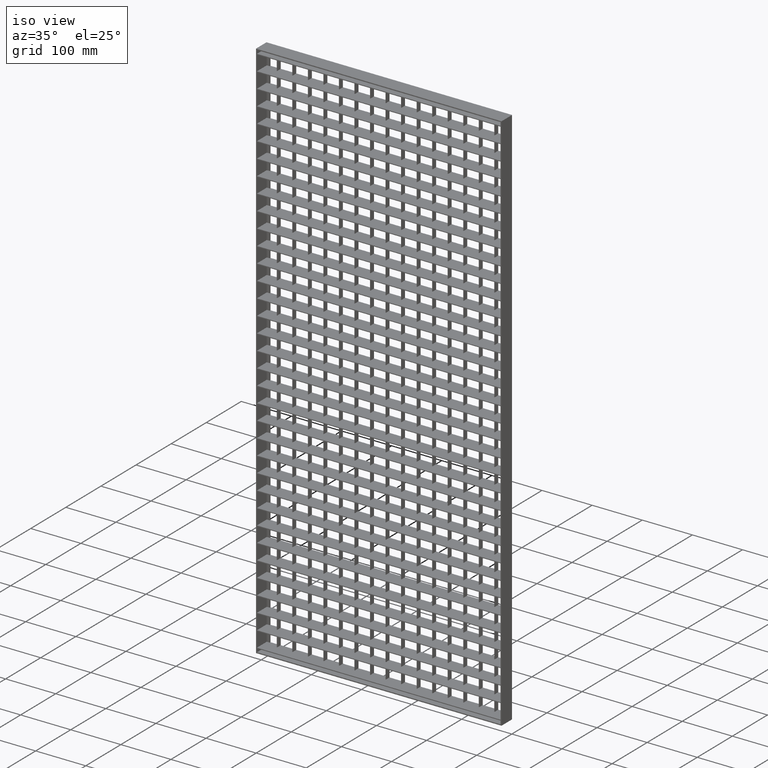
[diagram: clean part render]
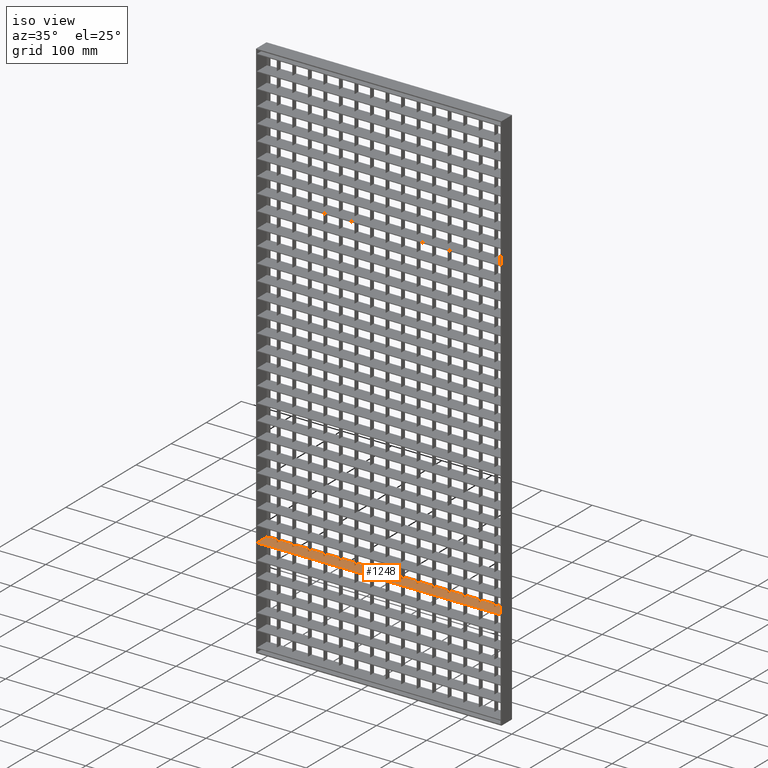
[diagram: same view with one face highlighted and labeled with its STEP entity id]
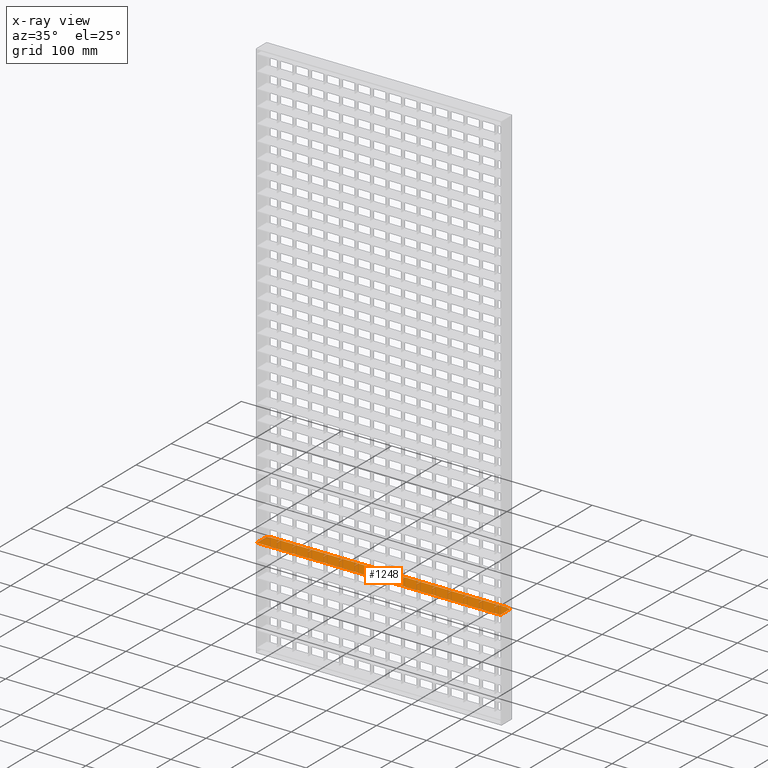
[diagram: x-ray of the same camera — body ghosted, the highlighted face saturated]
A machine part, iso view. The second image highlights one B-rep face of the part: STEP entity #1248.
The next image is the same camera in x-ray: the body ghosted, the highlighted face saturated — about 0% of this face is hidden behind the body in this view.
In plain terms, the highlighted planar face has unit normal (0, 0, -1).
Its self-contained STEP definition (entity closure, byte-faithful):
#134 = CARTESIAN_POINT ( 'NONE',  ( 151.4999999999999700, 4.999999999999996400, -890.7499999999998900 ) ) ;
#341 = CARTESIAN_POINT ( 'NONE',  ( 2.000000000000003100, 13.00000000000000400, -890.7499999999998900 ) ) ;
#351 = ORIENTED_EDGE ( 'NONE', *, *, #39759, .F. ) ;
#415 = VECTOR ( 'NONE', #20916, 1000.000000000000000 ) ;
#498 = CARTESIAN_POINT ( 'NONE',  ( 7.999999999999992900, 13.00000000000000400, -890.7499999999998900 ) ) ;
#500 = LINE ( 'NONE', #39254, #23497 ) ;
#518 = EDGE_CURVE ( 'NONE', #76921, #34134, #56385, .T. ) ;
#754 = EDGE_CURVE ( 'NONE', #41624, #6300, #35084, .T. ) ;
#811 = VECTOR ( 'NONE', #77457, 1000.000000000000000 ) ;
#1121 = CARTESIAN_POINT ( 'NONE',  ( 518.0374765917511000, 15.00000000000015500, -890.7499999999998900 ) ) ;
#1248 = ADVANCED_FACE ( 'NONE', ( #32161 ), #38291, .F. ) ;
#1271 = LINE ( 'NONE', #3978, #9024 ) ;
#1394 = VERTEX_POINT ( 'NONE', #27518 ) ;
#1456 = LINE ( 'NONE', #33383, #8215 ) ;
#1684 = VECTOR ( 'NONE', #37932, 1000.000000000000000 ) ;
#1763 = EDGE_CURVE ( 'NONE', #3922, #1394, #41634, .T. ) ;
#1937 = EDGE_CURVE ( 'NONE', #48985, #17955, #47420, .T. ) ;
#1994 = DIRECTION ( 'NONE',  ( 0.0000000000000000000, 1.000000000000000000, 0.0000000000000000000 ) ) ;
#2063 = ORIENTED_EDGE ( 'NONE', *, *, #50381, .F. ) ;
#2109 = CARTESIAN_POINT ( 'NONE',  ( 399.4999999999999400, 5.000000000000000900, -890.7499999999998900 ) ) ;
#2160 = DIRECTION ( 'NONE',  ( 0.0000000000000000000, -1.000000000000000000, 0.0000000000000000000 ) ) ;
#2202 = VERTEX_POINT ( 'NONE', #11016 ) ;
#2403 = VERTEX_POINT ( 'NONE', #61843 ) ;
#2601 = DIRECTION ( 'NONE',  ( 0.0000000000000000000, 1.000000000000000000, 0.0000000000000000000 ) ) ;
#2608 = LINE ( 'NONE', #43608, #1684 ) ;
#2758 = CARTESIAN_POINT ( 'NONE',  ( 58.50000000000000000, -14.99999999999984500, -890.7499999999998900 ) ) ;
#2920 = EDGE_CURVE ( 'NONE', #68671, #51860, #17337, .T. ) ;
#2939 = CARTESIAN_POINT ( 'NONE',  ( 121.5000000000000000, 15.00000000000003200, -890.7499999999998900 ) ) ;
#2988 = CARTESIAN_POINT ( 'NONE',  ( 306.5000000000000000, -14.99999999999984500, -890.7499999999998900 ) ) ;
#3185 = ORIENTED_EDGE ( 'NONE', *, *, #51077, .F. ) ;
#3772 = CARTESIAN_POINT ( 'NONE',  ( 28.50000000000002500, 15.00000000000000500, -890.7499999999998900 ) ) ;
#3790 = VECTOR ( 'NONE', #68099, 1000.000000000000000 ) ;
#3902 = EDGE_CURVE ( 'NONE', #24169, #14519, #49980, .T. ) ;
#3922 = VERTEX_POINT ( 'NONE', #48297 ) ;
#3978 = CARTESIAN_POINT ( 'NONE',  ( 152.4999999999999700, -14.99999999999984500, -890.7499999999998900 ) ) ;
#4136 = DIRECTION ( 'NONE',  ( -1.000000000000000000, -8.673617379884027600E-016, 0.0000000000000000000 ) ) ;
#4318 = DIRECTION ( 'NONE',  ( -1.000000000000000000, -3.061616997868382600E-016, 0.0000000000000000000 ) ) ;
#4360 = EDGE_CURVE ( 'NONE', #16167, #50277, #26713, .T. ) ;
#4477 = VERTEX_POINT ( 'NONE', #71099 ) ;
#4851 = DIRECTION ( 'NONE',  ( -1.000000000000000000, -8.673617379884027600E-016, 0.0000000000000000000 ) ) ;
#4856 = VECTOR ( 'NONE', #30933, 1000.000000000000000 ) ;
#4898 = DIRECTION ( 'NONE',  ( 0.0000000000000000000, -1.000000000000000000, 0.0000000000000000000 ) ) ;
#5033 = CARTESIAN_POINT ( 'NONE',  ( 518.0374765917512100, 4.999999999999950300, -890.7499999999998900 ) ) ;
#5333 = LINE ( 'NONE', #45336, #47735 ) ;
#5443 = DIRECTION ( 'NONE',  ( -1.000000000000000000, -3.061616997868382600E-016, 0.0000000000000000000 ) ) ;
#5637 = LINE ( 'NONE', #341, #69167 ) ;
#5686 = LINE ( 'NONE', #51364, #19169 ) ;
#5717 = VECTOR ( 'NONE', #53837, 1000.000000000000000 ) ;
#5730 = CARTESIAN_POINT ( 'NONE',  ( 151.5000000000000000, 15.00000000000000000, -890.7499999999998900 ) ) ;
#5967 = ORIENTED_EDGE ( 'NONE', *, *, #9410, .F. ) ;
#6091 = CARTESIAN_POINT ( 'NONE',  ( 338.5000000000000000, 15.00000000000009800, -890.7499999999998900 ) ) ;
#6125 = ORIENTED_EDGE ( 'NONE', *, *, #31402, .T. ) ;
#6300 = VERTEX_POINT ( 'NONE', #27670 ) ;
#6641 = CARTESIAN_POINT ( 'NONE',  ( 307.5000000000000000, 4.999999999999998200, -890.7499999999998900 ) ) ;
#6740 = ORIENTED_EDGE ( 'NONE', *, *, #4360, .F. ) ;
#6919 = VERTEX_POINT ( 'NONE', #74276 ) ;
#6930 = ORIENTED_EDGE ( 'NONE', *, *, #3902, .F. ) ;
#7146 = DIRECTION ( 'NONE',  ( -1.000000000000000000, -3.061616997868382600E-016, 0.0000000000000000000 ) ) ;
#7255 = DIRECTION ( 'NONE',  ( 1.000000000000000000, -8.673617379884027600E-016, 0.0000000000000000000 ) ) ;
#7666 = EDGE_CURVE ( 'NONE', #70153, #6919, #5333, .T. ) ;
#7886 = DIRECTION ( 'NONE',  ( 0.0000000000000000000, -1.000000000000000000, 0.0000000000000000000 ) ) ;
#8171 = VECTOR ( 'NONE', #10445, 1000.000000000000000 ) ;
#8215 = VECTOR ( 'NONE', #7886, 1000.000000000000000 ) ;
#8264 = VECTOR ( 'NONE', #74749, 1000.000000000000000 ) ;
#8434 = ORIENTED_EDGE ( 'NONE', *, *, #44682, .T. ) ;
#8486 = CARTESIAN_POINT ( 'NONE',  ( 368.5000000000000600, 5.000000000000000900, -890.7499999999998900 ) ) ;
#8952 = LINE ( 'NONE', #62444, #19497 ) ;
#9024 = VECTOR ( 'NONE', #22013, 1000.000000000000000 ) ;
#9126 = ORIENTED_EDGE ( 'NONE', *, *, #38103, .T. ) ;
#9410 = EDGE_CURVE ( 'NONE', #50277, #41624, #72578, .T. ) ;
#9729 = LINE ( 'NONE', #68938, #33780 ) ;
#10355 = ORIENTED_EDGE ( 'NONE', *, *, #22944, .T. ) ;
#10357 = DIRECTION ( 'NONE',  ( 0.0000000000000000000, -1.000000000000000000, 0.0000000000000000000 ) ) ;
#10445 = DIRECTION ( 'NONE',  ( -1.000000000000000000, -3.061616997868382600E-016, 0.0000000000000000000 ) ) ;
#10546 = ORIENTED_EDGE ( 'NONE', *, *, #58055, .F. ) ;
#10638 = EDGE_CURVE ( 'NONE', #55517, #39922, #20322, .T. ) ;
#10754 = CARTESIAN_POINT ( 'NONE',  ( 488.0000000000000000, -14.99999999999984500, -890.7499999999998900 ) ) ;
#10806 = VECTOR ( 'NONE', #65325, 1000.000000000000000 ) ;
#10929 = CARTESIAN_POINT ( 'NONE',  ( 275.4999999999999400, 15.00000000000008000, -890.7499999999998900 ) ) ;
#11016 = CARTESIAN_POINT ( 'NONE',  ( 338.5000000000000000, 4.999999999999999100, -890.7499999999998900 ) ) ;
#11127 = CARTESIAN_POINT ( 'NONE',  ( 369.5000000000000600, 15.00000000000010800, -890.7499999999998900 ) ) ;
#11144 = EDGE_CURVE ( 'NONE', #2403, #63561, #65511, .T. ) ;
#11607 = EDGE_CURVE ( 'NONE', #1394, #15689, #29721, .T. ) ;
#11839 = CARTESIAN_POINT ( 'NONE',  ( 399.4999999999999400, -14.99999999999984500, -890.7499999999998900 ) ) ;
#11862 = LINE ( 'NONE', #49736, #78402 ) ;
#12328 = EDGE_CURVE ( 'NONE', #17955, #76921, #73971, .T. ) ;
#12364 = DIRECTION ( 'NONE',  ( 0.0000000000000000000, 1.000000000000000000, 0.0000000000000000000 ) ) ;
#12676 = EDGE_CURVE ( 'NONE', #74708, #78824, #42081, .T. ) ;
#12813 = ORIENTED_EDGE ( 'NONE', *, *, #65623, .T. ) ;
#12918 = CARTESIAN_POINT ( 'NONE',  ( 431.5000000000000000, 15.00000000000012800, -890.7499999999998900 ) ) ;
#12945 = CARTESIAN_POINT ( 'NONE',  ( 244.9999999999998900, 13.00000000000000400, -890.7499999999998900 ) ) ;
#12970 = VECTOR ( 'NONE', #20400, 1000.000000000000000 ) ;
#13088 = CARTESIAN_POINT ( 'NONE',  ( 518.0374765917511000, 15.00000000000015500, -890.7499999999998900 ) ) ;
#13483 = ORIENTED_EDGE ( 'NONE', *, *, #44799, .F. ) ;
#13563 = DIRECTION ( 'NONE',  ( 1.000000000000000000, 0.0000000000000000000, 0.0000000000000000000 ) ) ;
#13624 = VERTEX_POINT ( 'NONE', #74706 ) ;
#13831 = LINE ( 'NONE', #72186, #28219 ) ;
#14060 = CARTESIAN_POINT ( 'NONE',  ( 58.50000000000000000, 15.00000000000000000, -890.7499999999998900 ) ) ;
#14135 = VECTOR ( 'NONE', #30585, 1000.000000000000000 ) ;
#14479 = DIRECTION ( 'NONE',  ( 8.673617379884034500E-016, -1.000000000000000000, 0.0000000000000000000 ) ) ;
#14519 = VERTEX_POINT ( 'NONE', #34431 ) ;
#14611 = CARTESIAN_POINT ( 'NONE',  ( 518.0374765917511000, 15.00000000000015500, -890.7499999999998900 ) ) ;
#15310 = ORIENTED_EDGE ( 'NONE', *, *, #56509, .T. ) ;
#15340 = ORIENTED_EDGE ( 'NONE', *, *, #518, .F. ) ;
#15583 = LINE ( 'NONE', #62556, #54105 ) ;
#15649 = VERTEX_POINT ( 'NONE', #63791 ) ;
#15689 = VERTEX_POINT ( 'NONE', #14060 ) ;
#15789 = VERTEX_POINT ( 'NONE', #3772 ) ;
#15890 = VECTOR ( 'NONE', #40667, 1000.000000000000000 ) ;
#15953 = ORIENTED_EDGE ( 'NONE', *, *, #11144, .F. ) ;
#16099 = VERTEX_POINT ( 'NONE', #61318 ) ;
#16167 = VERTEX_POINT ( 'NONE', #31410 ) ;
#16271 = VECTOR ( 'NONE', #67697, 1000.000000000000000 ) ;
#16346 = EDGE_CURVE ( 'NONE', #75550, #68671, #5686, .T. ) ;
#16484 = ORIENTED_EDGE ( 'NONE', *, *, #38194, .T. ) ;
#16579 = VERTEX_POINT ( 'NONE', #10929 ) ;
#17087 = CARTESIAN_POINT ( 'NONE',  ( 368.5000000000000600, 15.00000000000010800, -890.7499999999998900 ) ) ;
#17259 = EDGE_CURVE ( 'NONE', #31334, #55435, #79622, .T. ) ;
#17282 = LINE ( 'NONE', #52842, #56794 ) ;
#17337 = LINE ( 'NONE', #12945, #4856 ) ;
#17473 = LINE ( 'NONE', #66902, #45462 ) ;
#17861 = ORIENTED_EDGE ( 'NONE', *, *, #16346, .F. ) ;
#17940 = LINE ( 'NONE', #29757, #39069 ) ;
#17955 = VERTEX_POINT ( 'NONE', #8486 ) ;
#17989 = CARTESIAN_POINT ( 'NONE',  ( 27.49999999999996800, 4.999999999999996400, -890.7499999999998900 ) ) ;
#18189 = CARTESIAN_POINT ( 'NONE',  ( 482.0000000000000600, 13.00000000000000400, -890.7499999999998900 ) ) ;
#18248 = VERTEX_POINT ( 'NONE', #35817 ) ;
#18307 = CARTESIAN_POINT ( 'NONE',  ( 2.000000000000003100, -15.00000000000000000, -890.7499999999998900 ) ) ;
#18539 = VERTEX_POINT ( 'NONE', #35829 ) ;
#19003 = DIRECTION ( 'NONE',  ( 1.000000000000000000, -8.673617379884027600E-016, 0.0000000000000000000 ) ) ;
#19169 = VECTOR ( 'NONE', #14479, 1000.000000000000000 ) ;
#19172 = CARTESIAN_POINT ( 'NONE',  ( 276.4999999999999400, -14.99999999999984500, -890.7499999999998900 ) ) ;
#19474 = DIRECTION ( 'NONE',  ( -1.000000000000000000, -3.061616997868382600E-016, 0.0000000000000000000 ) ) ;
#19485 = VERTEX_POINT ( 'NONE', #32742 ) ;
#19497 = VECTOR ( 'NONE', #50094, 1000.000000000000000 ) ;
#19529 = CARTESIAN_POINT ( 'NONE',  ( 245.5000000000000000, 15.00000000000007100, -890.7499999999998900 ) ) ;
#19580 = CARTESIAN_POINT ( 'NONE',  ( 27.49999999999999600, 15.00000000000000000, -890.7499999999998900 ) ) ;
#19843 = EDGE_CURVE ( 'NONE', #22476, #51899, #27991, .T. ) ;
#19860 = VECTOR ( 'NONE', #5443, 1000.000000000000000 ) ;
#20151 = LINE ( 'NONE', #18307, #3790 ) ;
#20322 = LINE ( 'NONE', #34997, #21329 ) ;
#20387 = VERTEX_POINT ( 'NONE', #24286 ) ;
#20400 = DIRECTION ( 'NONE',  ( 0.0000000000000000000, -1.000000000000000000, 0.0000000000000000000 ) ) ;
#20540 = CARTESIAN_POINT ( 'NONE',  ( 518.0374765917511000, 15.00000000000015500, -890.7499999999998900 ) ) ;
#20824 = EDGE_CURVE ( 'NONE', #63561, #24169, #67291, .T. ) ;
#20916 = DIRECTION ( 'NONE',  ( 0.0000000000000000000, 1.000000000000000000, 0.0000000000000000000 ) ) ;
#21329 = VECTOR ( 'NONE', #29333, 1000.000000000000000 ) ;
#21651 = CARTESIAN_POINT ( 'NONE',  ( 2.000000000000003100, 13.00000000000000200, -890.7499999999998900 ) ) ;
#21883 = VERTEX_POINT ( 'NONE', #19580 ) ;
#22013 = DIRECTION ( 'NONE',  ( 0.0000000000000000000, -1.000000000000000000, 0.0000000000000000000 ) ) ;
#22247 = EDGE_CURVE ( 'NONE', #71247, #23544, #41947, .T. ) ;
#22308 = DIRECTION ( 'NONE',  ( 1.000000000000000000, -8.673617379884027600E-016, 0.0000000000000000000 ) ) ;
#22431 = EDGE_CURVE ( 'NONE', #68881, #46310, #73748, .T. ) ;
#22476 = VERTEX_POINT ( 'NONE', #38585 ) ;
#22850 = ORIENTED_EDGE ( 'NONE', *, *, #12676, .T. ) ;
#22862 = EDGE_CURVE ( 'NONE', #15649, #13624, #65913, .T. ) ;
#22913 = DIRECTION ( 'NONE',  ( 0.0000000000000000000, -1.000000000000000000, 0.0000000000000000000 ) ) ;
#22944 = EDGE_CURVE ( 'NONE', #15789, #16099, #29288, .T. ) ;
#23048 = CARTESIAN_POINT ( 'NONE',  ( 518.0374765917512100, 5.000000000000290400, -890.7499999999998900 ) ) ;
#23216 = EDGE_CURVE ( 'NONE', #36022, #74708, #62065, .T. ) ;
#23266 = EDGE_CURVE ( 'NONE', #64948, #41444, #1271, .T. ) ;
#23497 = VECTOR ( 'NONE', #45768, 1000.000000000000000 ) ;
#23544 = VERTEX_POINT ( 'NONE', #69020 ) ;
#23557 = CARTESIAN_POINT ( 'NONE',  ( 400.4999999999999400, -14.99999999999984500, -890.7499999999998900 ) ) ;
#23596 = CARTESIAN_POINT ( 'NONE',  ( 518.0374765917512100, 5.000000000000422800, -890.7499999999998900 ) ) ;
#23683 = ORIENTED_EDGE ( 'NONE', *, *, #10638, .F. ) ;
#23885 = DIRECTION ( 'NONE',  ( 1.000000000000000000, -8.673617379884027600E-016, 0.0000000000000000000 ) ) ;
#23933 = LINE ( 'NONE', #14611, #78895 ) ;
#23954 = DIRECTION ( 'NONE',  ( 0.0000000000000000000, 1.000000000000000000, 0.0000000000000000000 ) ) ;
#24169 = VERTEX_POINT ( 'NONE', #61952 ) ;
#24286 = CARTESIAN_POINT ( 'NONE',  ( 245.5000000000000000, 5.000000000000002700, -890.7499999999998900 ) ) ;
#24287 = ORIENTED_EDGE ( 'NONE', *, *, #38434, .T. ) ;
#24292 = CARTESIAN_POINT ( 'NONE',  ( 481.9999999999998900, 15.00000000000000400, -890.7499999999998900 ) ) ;
#24649 = CARTESIAN_POINT ( 'NONE',  ( 152.4999999999999700, 5.000000000000002700, -890.7499999999998900 ) ) ;
#24821 = VERTEX_POINT ( 'NONE', #46917 ) ;
#25275 = VECTOR ( 'NONE', #78952, 1000.000000000000000 ) ;
#25327 = VECTOR ( 'NONE', #4136, 1000.000000000000000 ) ;
#25367 = CARTESIAN_POINT ( 'NONE',  ( 214.5000000000000300, 15.00000000000006000, -890.7499999999998900 ) ) ;
#25508 = VECTOR ( 'NONE', #44371, 1000.000000000000000 ) ;
#25624 = AXIS2_PLACEMENT_3D ( 'NONE', #63101, #69538, #38825 ) ;
#25650 = LINE ( 'NONE', #37557, #14135 ) ;
#25768 = ORIENTED_EDGE ( 'NONE', *, *, #53965, .T. ) ;
#25775 = CARTESIAN_POINT ( 'NONE',  ( 518.0374765917512100, 5.000000000000342800, -890.7499999999998900 ) ) ;
#25848 = LINE ( 'NONE', #1121, #33583 ) ;
#26050 = VECTOR ( 'NONE', #35909, 1000.000000000000000 ) ;
#26316 = EDGE_CURVE ( 'NONE', #21883, #53020, #17473, .T. ) ;
#26377 = EDGE_CURVE ( 'NONE', #73980, #34134, #15583, .T. ) ;
#26399 = DIRECTION ( 'NONE',  ( -1.000000000000000000, -3.061616997868382600E-016, 0.0000000000000000000 ) ) ;
#26629 = LINE ( 'NONE', #23596, #51735 ) ;
#26713 = LINE ( 'NONE', #2988, #61422 ) ;
#26778 = VERTEX_POINT ( 'NONE', #60267 ) ;
#27269 = LINE ( 'NONE', #71719, #37849 ) ;
#27482 = CARTESIAN_POINT ( 'NONE',  ( 90.50000000000002800, 5.000000000000002700, -890.7499999999998900 ) ) ;
#27487 = EDGE_CURVE ( 'NONE', #29309, #51860, #65417, .T. ) ;
#27504 = VECTOR ( 'NONE', #42937, 1000.000000000000000 ) ;
#27518 = CARTESIAN_POINT ( 'NONE',  ( 58.49999999999994300, 4.999999999999999100, -890.7499999999998900 ) ) ;
#27520 = VERTEX_POINT ( 'NONE', #17989 ) ;
#27564 = CARTESIAN_POINT ( 'NONE',  ( 461.5000000000000000, -14.99999999999984500, -890.7499999999998900 ) ) ;
#27662 = LINE ( 'NONE', #50704, #47951 ) ;
#27670 = CARTESIAN_POINT ( 'NONE',  ( 307.5000000000000000, 15.00000000000008900, -890.7499999999998900 ) ) ;
#27846 = ORIENTED_EDGE ( 'NONE', *, *, #39073, .T. ) ;
#27991 = LINE ( 'NONE', #23557, #26050 ) ;
#28013 = ORIENTED_EDGE ( 'NONE', *, *, #78490, .T. ) ;
#28187 = CARTESIAN_POINT ( 'NONE',  ( 518.0374765917511000, 15.00000000000015500, -890.7499999999998900 ) ) ;
#28219 = VECTOR ( 'NONE', #22913, 1000.000000000000000 ) ;
#28384 = VERTEX_POINT ( 'NONE', #21651 ) ;
#28439 = DIRECTION ( 'NONE',  ( 0.0000000000000000000, 1.000000000000000000, 0.0000000000000000000 ) ) ;
#28518 = ORIENTED_EDGE ( 'NONE', *, *, #2920, .F. ) ;
#28595 = CARTESIAN_POINT ( 'NONE',  ( 518.0374765917512100, 5.000000000000262900, -890.7499999999998900 ) ) ;
#28780 = LINE ( 'NONE', #35534, #45194 ) ;
#28971 = DIRECTION ( 'NONE',  ( -1.000000000000000000, -8.673617379884027600E-016, 0.0000000000000000000 ) ) ;
#29070 = LINE ( 'NONE', #47574, #10806 ) ;
#29080 = CARTESIAN_POINT ( 'NONE',  ( 214.5000000000000300, -14.99999999999984500, -890.7499999999998900 ) ) ;
#29166 = ORIENTED_EDGE ( 'NONE', *, *, #23266, .T. ) ;
#29288 = LINE ( 'NONE', #38660, #12970 ) ;
#29309 = VERTEX_POINT ( 'NONE', #43441 ) ;
#29333 = DIRECTION ( 'NONE',  ( 0.0000000000000000000, 1.000000000000000000, 0.0000000000000000000 ) ) ;
#29445 = ORIENTED_EDGE ( 'NONE', *, *, #69776, .T. ) ;
#29638 = CARTESIAN_POINT ( 'NONE',  ( 518.0374765917512100, 5.000000000000397900, -890.7499999999998900 ) ) ;
#29691 = EDGE_CURVE ( 'NONE', #4477, #34824, #41768, .T. ) ;
#29701 = ORIENTED_EDGE ( 'NONE', *, *, #75378, .T. ) ;
#29721 = LINE ( 'NONE', #2758, #36433 ) ;
#29757 = CARTESIAN_POINT ( 'NONE',  ( 245.5000000000000000, -14.99999999999984500, -890.7499999999998900 ) ) ;
#29870 = DIRECTION ( 'NONE',  ( 1.000000000000000000, -8.673617379884027600E-016, 0.0000000000000000000 ) ) ;
#30023 = CARTESIAN_POINT ( 'NONE',  ( 337.5000000000000000, 15.00000000000009800, -890.7499999999998900 ) ) ;
#30143 = VECTOR ( 'NONE', #4898, 1000.000000000000000 ) ;
#30243 = ORIENTED_EDGE ( 'NONE', *, *, #41292, .T. ) ;
#30507 = ORIENTED_EDGE ( 'NONE', *, *, #20824, .F. ) ;
#30585 = DIRECTION ( 'NONE',  ( -1.000000000000000000, -3.061616997868382600E-016, 0.0000000000000000000 ) ) ;
#30693 = CARTESIAN_POINT ( 'NONE',  ( 90.50000000000002800, 15.00000000000002300, -890.7499999999998900 ) ) ;
#30725 = VECTOR ( 'NONE', #36277, 1000.000000000000000 ) ;
#30933 = DIRECTION ( 'NONE',  ( 1.000000000000000000, 0.0000000000000000000, 0.0000000000000000000 ) ) ;
#31333 = VERTEX_POINT ( 'NONE', #27482 ) ;
#31334 = VERTEX_POINT ( 'NONE', #59000 ) ;
#31383 = EDGE_CURVE ( 'NONE', #20387, #36022, #66922, .T. ) ;
#31402 = EDGE_CURVE ( 'NONE', #41444, #68881, #32230, .T. ) ;
#31410 = CARTESIAN_POINT ( 'NONE',  ( 306.5000000000000000, 15.00000000000008900, -890.7499999999998900 ) ) ;
#31692 = CARTESIAN_POINT ( 'NONE',  ( 518.0374765917512100, 4.999999999999895200, -890.7499999999998900 ) ) ;
#32161 = FACE_OUTER_BOUND ( 'NONE', #40021, .T. ) ;
#32227 = CARTESIAN_POINT ( 'NONE',  ( 213.4999999999999700, 4.999999999999998200, -890.7499999999998900 ) ) ;
#32230 = LINE ( 'NONE', #34467, #15890 ) ;
#32590 = LINE ( 'NONE', #79612, #16271 ) ;
#32742 = CARTESIAN_POINT ( 'NONE',  ( 276.4999999999999400, 15.00000000000008000, -890.7499999999998900 ) ) ;
#32744 = CARTESIAN_POINT ( 'NONE',  ( 307.5000000000000000, -14.99999999999984500, -890.7499999999998900 ) ) ;
#32769 = CARTESIAN_POINT ( 'NONE',  ( 89.49999999999997200, 4.999999999999998200, -890.7499999999998900 ) ) ;
#33383 = CARTESIAN_POINT ( 'NONE',  ( 121.5000000000000000, -14.99999999999984500, -890.7499999999998900 ) ) ;
#33583 = VECTOR ( 'NONE', #73837, 1000.000000000000000 ) ;
#33780 = VECTOR ( 'NONE', #56865, 1000.000000000000000 ) ;
#34018 = CARTESIAN_POINT ( 'NONE',  ( 462.5000000000000000, -14.99999999999984500, -890.7499999999998900 ) ) ;
#34134 = VERTEX_POINT ( 'NONE', #11127 ) ;
#34216 = EDGE_CURVE ( 'NONE', #46310, #37490, #25848, .T. ) ;
#34431 = CARTESIAN_POINT ( 'NONE',  ( 462.5000000000000000, 15.00000000000013700, -890.7499999999998900 ) ) ;
#34467 = CARTESIAN_POINT ( 'NONE',  ( 518.0374765917512100, 5.000000000000315300, -890.7499999999998900 ) ) ;
#34529 = VECTOR ( 'NONE', #59425, 1000.000000000000000 ) ;
#34675 = EDGE_CURVE ( 'NONE', #31333, #70153, #39298, .T. ) ;
#34824 = VERTEX_POINT ( 'NONE', #32227 ) ;
#34885 = VERTEX_POINT ( 'NONE', #56240 ) ;
#34997 = CARTESIAN_POINT ( 'NONE',  ( 431.5000000000000000, -14.99999999999984500, -890.7499999999998900 ) ) ;
#35084 = LINE ( 'NONE', #32744, #415 ) ;
#35113 = CARTESIAN_POINT ( 'NONE',  ( 276.4999999999999400, 4.999999999999997300, -890.7499999999998900 ) ) ;
#35133 = ORIENTED_EDGE ( 'NONE', *, *, #26377, .T. ) ;
#35534 = CARTESIAN_POINT ( 'NONE',  ( 518.0374765917512100, 4.999999999999787700, -890.7499999999998900 ) ) ;
#35732 = EDGE_CURVE ( 'NONE', #48985, #60103, #74898, .T. ) ;
#35817 = CARTESIAN_POINT ( 'NONE',  ( 2.000000000000003100, -15.00000000000000000, -890.7499999999998900 ) ) ;
#35829 = CARTESIAN_POINT ( 'NONE',  ( 59.50000000000005000, 15.00000000000001400, -890.7499999999998900 ) ) ;
#35909 = DIRECTION ( 'NONE',  ( 0.0000000000000000000, 1.000000000000000000, 0.0000000000000000000 ) ) ;
#36022 = VERTEX_POINT ( 'NONE', #75609 ) ;
#36118 = CARTESIAN_POINT ( 'NONE',  ( 400.4999999999999400, 15.00000000000011700, -890.7499999999998900 ) ) ;
#36277 = DIRECTION ( 'NONE',  ( -1.000000000000000000, -3.061616997868382600E-016, 0.0000000000000000000 ) ) ;
#36291 = DIRECTION ( 'NONE',  ( 0.0000000000000000000, -1.000000000000000000, 0.0000000000000000000 ) ) ;
#36433 = VECTOR ( 'NONE', #77104, 1000.000000000000000 ) ;
#36498 = CARTESIAN_POINT ( 'NONE',  ( 182.4999999999999400, 4.999999999999999100, -890.7499999999998900 ) ) ;
#36530 = CARTESIAN_POINT ( 'NONE',  ( 518.0374765917511000, 15.00000000000015500, -890.7499999999998900 ) ) ;
#36761 = ORIENTED_EDGE ( 'NONE', *, *, #79892, .T. ) ;
#37140 = VERTEX_POINT ( 'NONE', #50653 ) ;
#37308 = EDGE_CURVE ( 'NONE', #16579, #26778, #500, .T. ) ;
#37490 = VERTEX_POINT ( 'NONE', #2939 ) ;
#37557 = CARTESIAN_POINT ( 'NONE',  ( 518.0374765917511000, 15.00000000000015500, -890.7499999999998900 ) ) ;
#37784 = DIRECTION ( 'NONE',  ( -1.000000000000000000, -3.061616997868382600E-016, 0.0000000000000000000 ) ) ;
#37849 = VECTOR ( 'NONE', #59337, 1000.000000000000000 ) ;
#37932 = DIRECTION ( 'NONE',  ( -1.000000000000000000, -3.061616997868382600E-016, 0.0000000000000000000 ) ) ;
#37937 = CARTESIAN_POINT ( 'NONE',  ( 431.5000000000000000, 4.999999999999998200, -890.7499999999998900 ) ) ;
#38103 = EDGE_CURVE ( 'NONE', #74076, #57318, #13831, .T. ) ;
#38194 = EDGE_CURVE ( 'NONE', #78824, #4477, #72586, .T. ) ;
#38291 = PLANE ( 'NONE',  #25624 ) ;
#38434 = EDGE_CURVE ( 'NONE', #18539, #3922, #8952, .T. ) ;
#38585 = CARTESIAN_POINT ( 'NONE',  ( 400.4999999999999400, 4.999999999999997300, -890.7499999999998900 ) ) ;
#38660 = CARTESIAN_POINT ( 'NONE',  ( 28.49999999999997200, -14.99999999999984500, -890.7499999999998900 ) ) ;
#38682 = EDGE_CURVE ( 'NONE', #59022, #24821, #65775, .T. ) ;
#38725 = CARTESIAN_POINT ( 'NONE',  ( 368.5000000000000600, -14.99999999999984500, -890.7499999999998900 ) ) ;
#38825 = DIRECTION ( 'NONE',  ( -1.000000000000000000, 0.0000000000000000000, -0.0000000000000000000 ) ) ;
#39069 = VECTOR ( 'NONE', #48385, 1000.000000000000000 ) ;
#39073 = EDGE_CURVE ( 'NONE', #34824, #52274, #69471, .T. ) ;
#39254 = CARTESIAN_POINT ( 'NONE',  ( 275.4999999999999400, -14.99999999999984500, -890.7499999999998900 ) ) ;
#39298 = LINE ( 'NONE', #41940, #51889 ) ;
#39349 = EDGE_CURVE ( 'NONE', #55435, #31333, #9729, .T. ) ;
#39437 = ORIENTED_EDGE ( 'NONE', *, *, #57128, .T. ) ;
#39563 = ORIENTED_EDGE ( 'NONE', *, *, #35732, .T. ) ;
#39710 = CARTESIAN_POINT ( 'NONE',  ( 213.5000000000000300, -14.99999999999984500, -890.7499999999998900 ) ) ;
#39759 = EDGE_CURVE ( 'NONE', #73980, #58820, #46263, .T. ) ;
#39922 = VERTEX_POINT ( 'NONE', #12918 ) ;
#40021 = EDGE_LOOP ( 'NONE', ( #6930, #30507, #15953, #68031, #23683, #68746, #43328, #25768, #76429, #74955, #351, #35133, #15340, #47984, #62850, #39563, #79221, #10546, #78320, #56421, #41303, #5967, #6740, #12813, #61255, #13483, #54578, #39437, #49490, #69889, #63569, #22850, #16484, #60024, #27846, #55888, #9126, #15310, #29701, #8434, #29166, #6125, #66017, #53666, #78425, #58867, #29445, #66731, #75087, #79207, #52795, #66386, #24287, #70787, #73880, #28013, #10355, #30243, #70277, #73044, #57651, #2063, #57174, #3185, #55897, #28518, #17861, #36761 ) ) ;
#40353 = EDGE_CURVE ( 'NONE', #2202, #60103, #32590, .T. ) ;
#40514 = EDGE_CURVE ( 'NONE', #59022, #6300, #52885, .T. ) ;
#40667 = DIRECTION ( 'NONE',  ( -1.000000000000000000, -8.673617379884027600E-016, 0.0000000000000000000 ) ) ;
#40857 = LINE ( 'NONE', #28187, #8171 ) ;
#41265 = CARTESIAN_POINT ( 'NONE',  ( 152.5000000000000300, 15.00000000000004100, -890.7499999999998900 ) ) ;
#41292 = EDGE_CURVE ( 'NONE', #16099, #27520, #26629, .T. ) ;
#41303 = ORIENTED_EDGE ( 'NONE', *, *, #754, .F. ) ;
#41444 = VERTEX_POINT ( 'NONE', #24649 ) ;
#41499 = EDGE_CURVE ( 'NONE', #65636, #20387, #17940, .T. ) ;
#41526 = VECTOR ( 'NONE', #43550, 1000.000000000000000 ) ;
#41624 = VERTEX_POINT ( 'NONE', #6641 ) ;
#41634 = LINE ( 'NONE', #29638, #25275 ) ;
#41728 = CARTESIAN_POINT ( 'NONE',  ( 518.0374765917511000, 15.00000000000015500, -890.7499999999998900 ) ) ;
#41768 = LINE ( 'NONE', #28595, #25327 ) ;
#41940 = CARTESIAN_POINT ( 'NONE',  ( 518.0374765917512100, 5.000000000000370400, -890.7499999999998900 ) ) ;
#41947 = LINE ( 'NONE', #42666, #27504 ) ;
#42081 = LINE ( 'NONE', #52783, #43013 ) ;
#42234 = LINE ( 'NONE', #31692, #71169 ) ;
#42666 = CARTESIAN_POINT ( 'NONE',  ( 430.5000000000000000, -14.99999999999984500, -890.7499999999998900 ) ) ;
#42937 = DIRECTION ( 'NONE',  ( 0.0000000000000000000, -1.000000000000000000, 0.0000000000000000000 ) ) ;
#43013 = VECTOR ( 'NONE', #4318, 1000.000000000000000 ) ;
#43172 = LINE ( 'NONE', #71481, #811 ) ;
#43328 = ORIENTED_EDGE ( 'NONE', *, *, #22247, .F. ) ;
#43441 = CARTESIAN_POINT ( 'NONE',  ( 488.0000000000000000, -15.00000000000000400, -890.7499999999998900 ) ) ;
#43550 = DIRECTION ( 'NONE',  ( 8.673617379884035500E-016, 1.000000000000000000, 0.0000000000000000000 ) ) ;
#43608 = CARTESIAN_POINT ( 'NONE',  ( 518.0374765917512100, -14.99999999999984500, -890.7499999999998900 ) ) ;
#44131 = VERTEX_POINT ( 'NONE', #35113 ) ;
#44352 = DIRECTION ( 'NONE',  ( 0.0000000000000000000, 1.000000000000000000, 0.0000000000000000000 ) ) ;
#44371 = DIRECTION ( 'NONE',  ( -1.000000000000000000, -8.673617379884027600E-016, 0.0000000000000000000 ) ) ;
#44682 = EDGE_CURVE ( 'NONE', #37140, #64948, #17282, .T. ) ;
#44799 = EDGE_CURVE ( 'NONE', #26778, #44131, #28780, .T. ) ;
#44968 = EDGE_CURVE ( 'NONE', #18248, #28384, #20151, .T. ) ;
#45194 = VECTOR ( 'NONE', #29870, 1000.000000000000000 ) ;
#45211 = LINE ( 'NONE', #66989, #60569 ) ;
#45336 = CARTESIAN_POINT ( 'NONE',  ( 89.50000000000002800, -14.99999999999984500, -890.7499999999998900 ) ) ;
#45462 = VECTOR ( 'NONE', #7146, 1000.000000000000000 ) ;
#45717 = VECTOR ( 'NONE', #28439, 1000.000000000000000 ) ;
#45768 = DIRECTION ( 'NONE',  ( 0.0000000000000000000, -1.000000000000000000, 0.0000000000000000000 ) ) ;
#46263 = LINE ( 'NONE', #11839, #48188 ) ;
#46310 = VERTEX_POINT ( 'NONE', #5730 ) ;
#46485 = VECTOR ( 'NONE', #65625, 1000.000000000000000 ) ;
#46510 = LINE ( 'NONE', #68517, #54227 ) ;
#46637 = DIRECTION ( 'NONE',  ( -1.000000000000000000, -8.673617379884027600E-016, 0.0000000000000000000 ) ) ;
#46787 = CARTESIAN_POINT ( 'NONE',  ( 244.5000000000000000, -14.99999999999984500, -890.7499999999998900 ) ) ;
#46917 = CARTESIAN_POINT ( 'NONE',  ( 337.5000000000000000, 5.000000000000000900, -890.7499999999998900 ) ) ;
#47420 = LINE ( 'NONE', #38725, #61832 ) ;
#47496 = EDGE_CURVE ( 'NONE', #23544, #55517, #11862, .T. ) ;
#47574 = CARTESIAN_POINT ( 'NONE',  ( 518.0374765917511000, 15.00000000000015500, -890.7499999999998900 ) ) ;
#47735 = VECTOR ( 'NONE', #1994, 1000.000000000000000 ) ;
#47951 = VECTOR ( 'NONE', #51503, 1000.000000000000000 ) ;
#47984 = ORIENTED_EDGE ( 'NONE', *, *, #12328, .F. ) ;
#48188 = VECTOR ( 'NONE', #36291, 1000.000000000000000 ) ;
#48297 = CARTESIAN_POINT ( 'NONE',  ( 59.50000000000000000, 5.000000000000002700, -890.7499999999998900 ) ) ;
#48385 = DIRECTION ( 'NONE',  ( 0.0000000000000000000, -1.000000000000000000, 0.0000000000000000000 ) ) ;
#48985 = VERTEX_POINT ( 'NONE', #17087 ) ;
#49093 = CARTESIAN_POINT ( 'NONE',  ( 487.9999999999997700, 13.00000000000000400, -890.7499999999998900 ) ) ;
#49175 = VECTOR ( 'NONE', #10357, 1000.000000000000000 ) ;
#49490 = ORIENTED_EDGE ( 'NONE', *, *, #41499, .T. ) ;
#49736 = CARTESIAN_POINT ( 'NONE',  ( 518.0374765917512100, 4.999999999999922700, -890.7499999999998900 ) ) ;
#49980 = LINE ( 'NONE', #34018, #71120 ) ;
#50094 = DIRECTION ( 'NONE',  ( 0.0000000000000000000, -1.000000000000000000, 0.0000000000000000000 ) ) ;
#50277 = VERTEX_POINT ( 'NONE', #67640 ) ;
#50381 = EDGE_CURVE ( 'NONE', #28384, #34885, #5637, .T. ) ;
#50445 = EDGE_CURVE ( 'NONE', #44131, #19485, #68255, .T. ) ;
#50593 = VECTOR ( 'NONE', #46637, 1000.000000000000000 ) ;
#50653 = CARTESIAN_POINT ( 'NONE',  ( 182.5000000000000000, 15.00000000000000000, -890.7499999999998900 ) ) ;
#50704 = CARTESIAN_POINT ( 'NONE',  ( 518.0374765917512100, 4.999999999999842800, -890.7499999999998900 ) ) ;
#50850 = CARTESIAN_POINT ( 'NONE',  ( 369.5000000000000600, -14.99999999999984500, -890.7499999999998900 ) ) ;
#51077 = EDGE_CURVE ( 'NONE', #29309, #18248, #2608, .T. ) ;
#51105 = VECTOR ( 'NONE', #72320, 1000.000000000000000 ) ;
#51364 = CARTESIAN_POINT ( 'NONE',  ( 482.0000000000000600, 13.00000000000035300, -890.7499999999998900 ) ) ;
#51503 = DIRECTION ( 'NONE',  ( 1.000000000000000000, -8.673617379884027600E-016, 0.0000000000000000000 ) ) ;
#51735 = VECTOR ( 'NONE', #28971, 1000.000000000000000 ) ;
#51860 = VERTEX_POINT ( 'NONE', #49093 ) ;
#51889 = VECTOR ( 'NONE', #4851, 1000.000000000000000 ) ;
#51899 = VERTEX_POINT ( 'NONE', #36118 ) ;
#51933 = VECTOR ( 'NONE', #61987, 1000.000000000000000 ) ;
#52107 = EDGE_CURVE ( 'NONE', #37490, #15649, #1456, .T. ) ;
#52119 = DIRECTION ( 'NONE',  ( 0.0000000000000000000, 1.000000000000000000, 0.0000000000000000000 ) ) ;
#52274 = VERTEX_POINT ( 'NONE', #71352 ) ;
#52755 = LINE ( 'NONE', #66219, #72990 ) ;
#52783 = CARTESIAN_POINT ( 'NONE',  ( 518.0374765917511000, 15.00000000000015500, -890.7499999999998900 ) ) ;
#52795 = ORIENTED_EDGE ( 'NONE', *, *, #7666, .T. ) ;
#52842 = CARTESIAN_POINT ( 'NONE',  ( 518.0374765917511000, 15.00000000000015500, -890.7499999999998900 ) ) ;
#52885 = LINE ( 'NONE', #13088, #72113 ) ;
#53020 = VERTEX_POINT ( 'NONE', #68174 ) ;
#53104 = CARTESIAN_POINT ( 'NONE',  ( 518.0374765917512100, 5.000000000000235400, -890.7499999999998900 ) ) ;
#53147 = VECTOR ( 'NONE', #2601, 1000.000000000000000 ) ;
#53666 = ORIENTED_EDGE ( 'NONE', *, *, #34216, .T. ) ;
#53837 = DIRECTION ( 'NONE',  ( 0.0000000000000000000, 1.000000000000000000, 0.0000000000000000000 ) ) ;
#53965 = EDGE_CURVE ( 'NONE', #71247, #51899, #40857, .T. ) ;
#54105 = VECTOR ( 'NONE', #68728, 1000.000000000000000 ) ;
#54227 = VECTOR ( 'NONE', #56463, 1000.000000000000000 ) ;
#54578 = ORIENTED_EDGE ( 'NONE', *, *, #37308, .F. ) ;
#55435 = VERTEX_POINT ( 'NONE', #30693 ) ;
#55517 = VERTEX_POINT ( 'NONE', #37937 ) ;
#55888 = ORIENTED_EDGE ( 'NONE', *, *, #79213, .T. ) ;
#55897 = ORIENTED_EDGE ( 'NONE', *, *, #27487, .T. ) ;
#56048 = EDGE_CURVE ( 'NONE', #34885, #53020, #74334, .T. ) ;
#56240 = CARTESIAN_POINT ( 'NONE',  ( 7.999999999999992900, 13.00000000000000400, -890.7499999999998900 ) ) ;
#56385 = LINE ( 'NONE', #50850, #57379 ) ;
#56421 = ORIENTED_EDGE ( 'NONE', *, *, #40514, .T. ) ;
#56463 = DIRECTION ( 'NONE',  ( -1.000000000000000000, -3.061616997868382600E-016, 0.0000000000000000000 ) ) ;
#56509 = EDGE_CURVE ( 'NONE', #57318, #79297, #79994, .T. ) ;
#56794 = VECTOR ( 'NONE', #76833, 1000.000000000000000 ) ;
#56865 = DIRECTION ( 'NONE',  ( 0.0000000000000000000, -1.000000000000000000, 0.0000000000000000000 ) ) ;
#57118 = EDGE_CURVE ( 'NONE', #27520, #21883, #45211, .T. ) ;
#57128 = EDGE_CURVE ( 'NONE', #16579, #65636, #78914, .T. ) ;
#57146 = CARTESIAN_POINT ( 'NONE',  ( 461.5000000000000000, 5.000000000000000900, -890.7499999999998900 ) ) ;
#57174 = ORIENTED_EDGE ( 'NONE', *, *, #44968, .F. ) ;
#57318 = VERTEX_POINT ( 'NONE', #75345 ) ;
#57379 = VECTOR ( 'NONE', #44352, 1000.000000000000000 ) ;
#57651 = ORIENTED_EDGE ( 'NONE', *, *, #56048, .F. ) ;
#58055 = EDGE_CURVE ( 'NONE', #24821, #2202, #27662, .T. ) ;
#58820 = VERTEX_POINT ( 'NONE', #2109 ) ;
#58867 = ORIENTED_EDGE ( 'NONE', *, *, #22862, .T. ) ;
#59000 = CARTESIAN_POINT ( 'NONE',  ( 120.5000000000000000, 15.00000000000000000, -890.7499999999998900 ) ) ;
#59022 = VERTEX_POINT ( 'NONE', #30023 ) ;
#59181 = CARTESIAN_POINT ( 'NONE',  ( 518.0374765917512100, 4.999999999999871200, -890.7499999999998900 ) ) ;
#59337 = DIRECTION ( 'NONE',  ( 0.0000000000000000000, 1.000000000000000000, 0.0000000000000000000 ) ) ;
#59425 = DIRECTION ( 'NONE',  ( 1.000000000000000000, -8.673617379884027600E-016, 0.0000000000000000000 ) ) ;
#60024 = ORIENTED_EDGE ( 'NONE', *, *, #29691, .T. ) ;
#60103 = VERTEX_POINT ( 'NONE', #6091 ) ;
#60247 = CARTESIAN_POINT ( 'NONE',  ( 518.0374765917512100, 4.999999999999815300, -890.7499999999998900 ) ) ;
#60267 = CARTESIAN_POINT ( 'NONE',  ( 275.4999999999999400, 5.000000000000000900, -890.7499999999998900 ) ) ;
#60569 = VECTOR ( 'NONE', #12364, 1000.000000000000000 ) ;
#60786 = DIRECTION ( 'NONE',  ( -1.000000000000000000, -3.061616997868382600E-016, 0.0000000000000000000 ) ) ;
#61255 = ORIENTED_EDGE ( 'NONE', *, *, #50445, .F. ) ;
#61259 = CARTESIAN_POINT ( 'NONE',  ( 369.5000000000000600, 5.000000000000000000, -890.7499999999998900 ) ) ;
#61318 = CARTESIAN_POINT ( 'NONE',  ( 28.49999999999997200, 5.000000000000002700, -890.7499999999998900 ) ) ;
#61346 = EDGE_CURVE ( 'NONE', #6919, #18539, #29070, .T. ) ;
#61422 = VECTOR ( 'NONE', #70020, 1000.000000000000000 ) ;
#61832 = VECTOR ( 'NONE', #2160, 1000.000000000000000 ) ;
#61843 = CARTESIAN_POINT ( 'NONE',  ( 461.5000000000000000, 15.00000000000013700, -890.7499999999998900 ) ) ;
#61952 = CARTESIAN_POINT ( 'NONE',  ( 462.5000000000000000, 4.999999999999999100, -890.7499999999998900 ) ) ;
#61987 = DIRECTION ( 'NONE',  ( 0.0000000000000000000, 1.000000000000000000, 0.0000000000000000000 ) ) ;
#62065 = LINE ( 'NONE', #46787, #45717 ) ;
#62140 = VECTOR ( 'NONE', #19474, 1000.000000000000000 ) ;
#62444 = CARTESIAN_POINT ( 'NONE',  ( 59.50000000000000000, -14.99999999999984500, -890.7499999999998900 ) ) ;
#62556 = CARTESIAN_POINT ( 'NONE',  ( 518.0374765917511000, 15.00000000000015500, -890.7499999999998900 ) ) ;
#62788 = CARTESIAN_POINT ( 'NONE',  ( 430.5000000000000000, 15.00000000000012800, -890.7499999999998900 ) ) ;
#62850 = ORIENTED_EDGE ( 'NONE', *, *, #1937, .F. ) ;
#63101 = CARTESIAN_POINT ( 'NONE',  ( 518.0374765917512100, -14.99999999999984500, -890.7499999999998900 ) ) ;
#63484 = CARTESIAN_POINT ( 'NONE',  ( 244.5000000000000000, 15.00000000000000000, -890.7499999999998900 ) ) ;
#63561 = VERTEX_POINT ( 'NONE', #57146 ) ;
#63569 = ORIENTED_EDGE ( 'NONE', *, *, #23216, .T. ) ;
#63791 = CARTESIAN_POINT ( 'NONE',  ( 121.5000000000000000, 5.000000000000002700, -890.7499999999998900 ) ) ;
#63932 = CARTESIAN_POINT ( 'NONE',  ( 183.5000000000000600, 15.00000000000005200, -890.7499999999998900 ) ) ;
#64948 = VERTEX_POINT ( 'NONE', #41265 ) ;
#65325 = DIRECTION ( 'NONE',  ( -1.000000000000000000, -3.061616997868382600E-016, 0.0000000000000000000 ) ) ;
#65417 = LINE ( 'NONE', #10754, #5717 ) ;
#65511 = LINE ( 'NONE', #27564, #49175 ) ;
#65623 = EDGE_CURVE ( 'NONE', #16167, #19485, #46510, .T. ) ;
#65625 = DIRECTION ( 'NONE',  ( 0.0000000000000000000, -1.000000000000000000, 0.0000000000000000000 ) ) ;
#65636 = VERTEX_POINT ( 'NONE', #19529 ) ;
#65775 = LINE ( 'NONE', #72105, #46485 ) ;
#65913 = LINE ( 'NONE', #25775, #25508 ) ;
#66017 = ORIENTED_EDGE ( 'NONE', *, *, #22431, .T. ) ;
#66219 = CARTESIAN_POINT ( 'NONE',  ( 120.5000000000000000, -14.99999999999984500, -890.7499999999998900 ) ) ;
#66386 = ORIENTED_EDGE ( 'NONE', *, *, #61346, .T. ) ;
#66731 = ORIENTED_EDGE ( 'NONE', *, *, #17259, .T. ) ;
#66902 = CARTESIAN_POINT ( 'NONE',  ( 518.0374765917511000, 15.00000000000015500, -890.7499999999998900 ) ) ;
#66922 = LINE ( 'NONE', #53104, #50593 ) ;
#66989 = CARTESIAN_POINT ( 'NONE',  ( 27.49999999999996800, -14.99999999999984500, -890.7499999999998900 ) ) ;
#67291 = LINE ( 'NONE', #5033, #34529 ) ;
#67640 = CARTESIAN_POINT ( 'NONE',  ( 306.5000000000000000, 5.000000000000000900, -890.7499999999998900 ) ) ;
#67646 = EDGE_CURVE ( 'NONE', #2403, #39922, #23933, .T. ) ;
#67697 = DIRECTION ( 'NONE',  ( 0.0000000000000000000, 1.000000000000000000, 0.0000000000000000000 ) ) ;
#68031 = ORIENTED_EDGE ( 'NONE', *, *, #67646, .T. ) ;
#68099 = DIRECTION ( 'NONE',  ( 0.0000000000000000000, 1.000000000000000000, 0.0000000000000000000 ) ) ;
#68174 = CARTESIAN_POINT ( 'NONE',  ( 8.000000000000007100, 14.99999999999999800, -890.7499999999998900 ) ) ;
#68255 = LINE ( 'NONE', #19172, #51933 ) ;
#68517 = CARTESIAN_POINT ( 'NONE',  ( 518.0374765917511000, 15.00000000000015500, -890.7499999999998900 ) ) ;
#68671 = VERTEX_POINT ( 'NONE', #18189 ) ;
#68728 = DIRECTION ( 'NONE',  ( -1.000000000000000000, -3.061616997868382600E-016, 0.0000000000000000000 ) ) ;
#68746 = ORIENTED_EDGE ( 'NONE', *, *, #47496, .F. ) ;
#68881 = VERTEX_POINT ( 'NONE', #134 ) ;
#68938 = CARTESIAN_POINT ( 'NONE',  ( 90.50000000000002800, -14.99999999999984500, -890.7499999999998900 ) ) ;
#69020 = CARTESIAN_POINT ( 'NONE',  ( 430.5000000000000000, 5.000000000000000900, -890.7499999999998900 ) ) ;
#69167 = VECTOR ( 'NONE', #13563, 1000.000000000000000 ) ;
#69471 = LINE ( 'NONE', #39710, #53147 ) ;
#69538 = DIRECTION ( 'NONE',  ( 0.0000000000000000000, 0.0000000000000000000, -1.000000000000000000 ) ) ;
#69776 = EDGE_CURVE ( 'NONE', #13624, #31334, #52755, .T. ) ;
#69889 = ORIENTED_EDGE ( 'NONE', *, *, #31383, .T. ) ;
#70020 = DIRECTION ( 'NONE',  ( 0.0000000000000000000, -1.000000000000000000, 0.0000000000000000000 ) ) ;
#70153 = VERTEX_POINT ( 'NONE', #32769 ) ;
#70277 = ORIENTED_EDGE ( 'NONE', *, *, #57118, .T. ) ;
#70639 = VECTOR ( 'NONE', #23885, 1000.000000000000000 ) ;
#70787 = ORIENTED_EDGE ( 'NONE', *, *, #1763, .T. ) ;
#71099 = CARTESIAN_POINT ( 'NONE',  ( 214.5000000000000300, 5.000000000000002700, -890.7499999999998900 ) ) ;
#71120 = VECTOR ( 'NONE', #52119, 1000.000000000000000 ) ;
#71169 = VECTOR ( 'NONE', #7255, 1000.000000000000000 ) ;
#71247 = VERTEX_POINT ( 'NONE', #62788 ) ;
#71352 = CARTESIAN_POINT ( 'NONE',  ( 213.5000000000000000, 15.00000000000000000, -890.7499999999998900 ) ) ;
#71481 = CARTESIAN_POINT ( 'NONE',  ( 518.0374765917511000, 15.00000000000015500, -890.7499999999998900 ) ) ;
#71719 = CARTESIAN_POINT ( 'NONE',  ( 182.5000000000000000, -14.99999999999984500, -890.7499999999998900 ) ) ;
#72031 = VECTOR ( 'NONE', #60786, 1000.000000000000000 ) ;
#72105 = CARTESIAN_POINT ( 'NONE',  ( 337.5000000000000000, -14.99999999999984500, -890.7499999999998900 ) ) ;
#72113 = VECTOR ( 'NONE', #37784, 1000.000000000000000 ) ;
#72186 = CARTESIAN_POINT ( 'NONE',  ( 183.5000000000000000, -14.99999999999984500, -890.7499999999998900 ) ) ;
#72320 = DIRECTION ( 'NONE',  ( -1.000000000000000000, -8.673617379884027600E-016, 0.0000000000000000000 ) ) ;
#72578 = LINE ( 'NONE', #60247, #70639 ) ;
#72586 = LINE ( 'NONE', #29080, #30143 ) ;
#72990 = VECTOR ( 'NONE', #23954, 1000.000000000000000 ) ;
#73044 = ORIENTED_EDGE ( 'NONE', *, *, #26316, .T. ) ;
#73748 = LINE ( 'NONE', #75832, #8264 ) ;
#73837 = DIRECTION ( 'NONE',  ( -1.000000000000000000, -3.061616997868382600E-016, 0.0000000000000000000 ) ) ;
#73880 = ORIENTED_EDGE ( 'NONE', *, *, #11607, .T. ) ;
#73971 = LINE ( 'NONE', #59181, #77860 ) ;
#73980 = VERTEX_POINT ( 'NONE', #75307 ) ;
#74076 = VERTEX_POINT ( 'NONE', #63932 ) ;
#74276 = CARTESIAN_POINT ( 'NONE',  ( 89.50000000000000000, 15.00000000000000000, -890.7499999999998900 ) ) ;
#74334 = LINE ( 'NONE', #498, #41526 ) ;
#74706 = CARTESIAN_POINT ( 'NONE',  ( 120.5000000000000000, 4.999999999999997300, -890.7499999999998900 ) ) ;
#74708 = VERTEX_POINT ( 'NONE', #63484 ) ;
#74749 = DIRECTION ( 'NONE',  ( 0.0000000000000000000, 1.000000000000000000, 0.0000000000000000000 ) ) ;
#74898 = LINE ( 'NONE', #78873, #72031 ) ;
#74955 = ORIENTED_EDGE ( 'NONE', *, *, #77547, .F. ) ;
#75087 = ORIENTED_EDGE ( 'NONE', *, *, #39349, .T. ) ;
#75307 = CARTESIAN_POINT ( 'NONE',  ( 399.4999999999999400, 15.00000000000011700, -890.7499999999998900 ) ) ;
#75345 = CARTESIAN_POINT ( 'NONE',  ( 183.5000000000000000, 5.000000000000002700, -890.7499999999998900 ) ) ;
#75378 = EDGE_CURVE ( 'NONE', #79297, #37140, #27269, .T. ) ;
#75550 = VERTEX_POINT ( 'NONE', #24292 ) ;
#75609 = CARTESIAN_POINT ( 'NONE',  ( 244.5000000000000000, 4.999999999999997300, -890.7499999999998900 ) ) ;
#75710 = LINE ( 'NONE', #20540, #62140 ) ;
#75832 = CARTESIAN_POINT ( 'NONE',  ( 151.4999999999999700, -14.99999999999984500, -890.7499999999998900 ) ) ;
#76429 = ORIENTED_EDGE ( 'NONE', *, *, #19843, .F. ) ;
#76833 = DIRECTION ( 'NONE',  ( -1.000000000000000000, -3.061616997868382600E-016, 0.0000000000000000000 ) ) ;
#76921 = VERTEX_POINT ( 'NONE', #61259 ) ;
#77104 = DIRECTION ( 'NONE',  ( 0.0000000000000000000, 1.000000000000000000, 0.0000000000000000000 ) ) ;
#77457 = DIRECTION ( 'NONE',  ( -1.000000000000000000, -3.061616997868382600E-016, 0.0000000000000000000 ) ) ;
#77547 = EDGE_CURVE ( 'NONE', #58820, #22476, #42234, .T. ) ;
#77860 = VECTOR ( 'NONE', #22308, 1000.000000000000000 ) ;
#78320 = ORIENTED_EDGE ( 'NONE', *, *, #38682, .F. ) ;
#78402 = VECTOR ( 'NONE', #19003, 1000.000000000000000 ) ;
#78425 = ORIENTED_EDGE ( 'NONE', *, *, #52107, .T. ) ;
#78490 = EDGE_CURVE ( 'NONE', #15689, #15789, #43172, .T. ) ;
#78824 = VERTEX_POINT ( 'NONE', #25367 ) ;
#78873 = CARTESIAN_POINT ( 'NONE',  ( 518.0374765917511000, 15.00000000000015500, -890.7499999999998900 ) ) ;
#78895 = VECTOR ( 'NONE', #26399, 1000.000000000000000 ) ;
#78914 = LINE ( 'NONE', #36530, #30725 ) ;
#78952 = DIRECTION ( 'NONE',  ( -1.000000000000000000, -8.673617379884027600E-016, 0.0000000000000000000 ) ) ;
#79207 = ORIENTED_EDGE ( 'NONE', *, *, #34675, .T. ) ;
#79213 = EDGE_CURVE ( 'NONE', #52274, #74076, #25650, .T. ) ;
#79221 = ORIENTED_EDGE ( 'NONE', *, *, #40353, .F. ) ;
#79297 = VERTEX_POINT ( 'NONE', #36498 ) ;
#79612 = CARTESIAN_POINT ( 'NONE',  ( 338.5000000000000000, -14.99999999999984500, -890.7499999999998900 ) ) ;
#79622 = LINE ( 'NONE', #41728, #19860 ) ;
#79892 = EDGE_CURVE ( 'NONE', #75550, #14519, #75710, .T. ) ;
#79994 = LINE ( 'NONE', #23048, #51105 ) ;